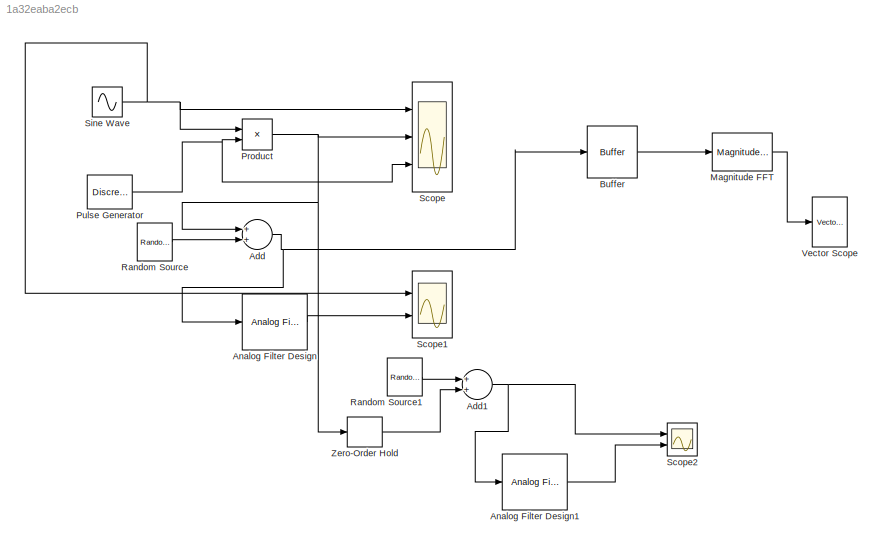
MODEL slx_1a32eaba2ecb
KIND model
BLOCK [Sum] Add
  InputSameDT = off
  OutDataTypeStr = Inherit: Inherit via internal rule
  Ports = [2, 1]
  SaturateOnIntegerOverflow = off
BLOCK [Sum] Add1
  InputSameDT = off
  OutDataTypeStr = Inherit: Inherit via internal rule
  Ports = [2, 1]
  SaturateOnIntegerOverflow = off
BLOCK [Reference] Analog Filter Design  REF=dsparch4/Analog
Filter Design
  N = 80
  Ports = [1, 1]
  Rp = 2
  Rs = 40
  SourceBlock = dsparch4/Analog\nFilter Design
  SourceType = Analog Filter Design
  Whi = 80
  Wlo = 30
  filttype = Lowpass
  method = Butterworth
BLOCK [Reference] Analog Filter Design1  REF=dsparch4/Analog
Filter Design
  N = 30
  Ports = [1, 1]
  Rp = 2
  Rs = 40
  SourceBlock = dsparch4/Analog\nFilter Design
  SourceType = Analog Filter Design
  Whi = 80
  Wlo = 200
  filttype = Lowpass
  method = Butterworth
BLOCK [Buffer] Buffer
  TreatMby1Signals = One channel
BLOCK [Reference] Magnitude FFT  REF=dspspect3/Magnitude
FFT
  FFTImplementation = Auto
  Ports = [1, 1]
  SourceBlock = dspspect3/Magnitude\nFFT
  SourceType = Magnitude FFT
  WrapInput = on
  fftLenInherit = off
  fftsize = 256
  mag_or_magsq = Magnitude squared
BLOCK [Product] Product
  InputSameDT = off
  OutDataTypeStr = Inherit: Inherit via internal rule
  Ports = [2, 1]
  SaturateOnIntegerOverflow = off
BLOCK [DiscretePulseGenerator] Pulse Generator
  Amplitude = 2
  Period = 3
  Ports = [0, 1]
  SampleTime = 0.01
BLOCK [Reference] Random Source  REF=dspsrcs4/Random
Source
  CltLength = 4
  DataType = Double
  IsInherit = off
  MaxVal = 2
  MeanVal = 0
  MinVal = 0
  NormMethod = Sum of uniform values
  OutComplex = Real
  Ports = [0, 1]
  RepMode = Not repeatable
  SampFrame = 1
  SampMode = Discrete
  SampTime = 1
  SourceBlock = dspsrcs4/Random\nSource
  SourceType = Random Source
  SrcType = Gaussian
  UserDataPersistent = on
  VarVal = 0.5
  rawSeed = 1
BLOCK [Reference] Random Source1  REF=dspsrcs4/Random
Source
  CltLength = 4
  DataType = Double
  IsInherit = off
  MaxVal = 2
  MeanVal = 0
  MinVal = 0
  NormMethod = Sum of uniform values
  OutComplex = Real
  Ports = [0, 1]
  RepMode = Not repeatable
  SampFrame = 1
  SampMode = Discrete
  SampTime = 1
  SourceBlock = dspsrcs4/Random\nSource
  SourceType = Random Source
  SrcType = Gaussian
  UserDataPersistent = on
  VarVal = 0.5
  rawSeed = 1
BLOCK [Scope] Scope
  DataFormat = StructureWithTime
  Floating = off
  NumInputPorts = 3
  Ports = [3]
  SampleTime = 0
  ShowLegends = off
  YMax = 5~5~5
  YMin = -5~-5~-5
BLOCK [Scope] Scope1
  DataFormat = StructureWithTime
  Floating = off
  NumInputPorts = 2
  Ports = [2]
  SampleTime = 0
  SaveName = ScopeData1
  ShowLegends = off
  YMax = 5~5
  YMin = -5~-5
BLOCK [Scope] Scope2
  DataFormat = StructureWithTime
  Floating = off
  NumInputPorts = 2
  Ports = [2]
  SampleTime = 0
  SaveName = ScopeData2
  ShowLegends = off
  YMax = 5~5
  YMin = -5~-5
BLOCK [Sin] Sine Wave
  Amplitude = 10
  Frequency = 5
  Ports = [0, 1]
  SampleTime = 0.01
  Samples = 60
  SineType = Sample based
BLOCK [Reference] Vector Scope  REF=dspsnks4/Vector
Scope
  AxisGrid = on
  AxisLegend = off
  AxisProperties = off
  AxisZoom = off
  DisplayProperties = off
  Domain = Time
  FigPos = get(0,'defaultfigureposition')
  FrameNumber = on
  HorizSpan = 1
  InheritXIncr = on
  LineProperties = off
  Memory = off
  OpenScopeAtSimStart = on
  OpenScopeImmediately = off
  Ports = [1]
  ScopeProperties = on
  ShowPortLabels = off
  SourceBlock = dspsnks4/Vector\nScope
  SourceType = Vector Scope
  XAxisParamsVer = 6.9
  XIncr = 1
  XLabel = Time
  XLimit = Auto
  XMax = 1
  XMin = 0
  XRange = [0...Fs/2]
  XStart = 0
  XUnits = Hertz
  YLabel = Amplitude
  YMax = 10
  YMin = -10
  YUnits = dB
BLOCK [ZeroOrderHold] Zero-Order Hold
  SampleTime = 0.25
NET Add1:1 -> Analog Filter Design1:1, Scope2:1
NET Add:1 -> Analog Filter Design:1, Buffer:1
LINE Analog Filter Design1:1 -> Scope2:2
LINE Analog Filter Design:1 -> Scope1:2
LINE Buffer:1 -> Magnitude FFT:1
LINE Magnitude FFT:1 -> Vector Scope:1
NET Product:1 -> Add:1, Scope:2, Zero-Order Hold:1
NET Pulse Generator:1 -> Product:2, Scope:3
LINE Random Source1:1 -> Add1:1
LINE Random Source:1 -> Add:2
NET Sine Wave:1 -> Product:1, Scope1:1, Scope:1
LINE Zero-Order Hold:1 -> Add1:2
note: NET lines group one-source signal fan-out (src -> all destinations, sorted); 1:1 wires keep LINE
